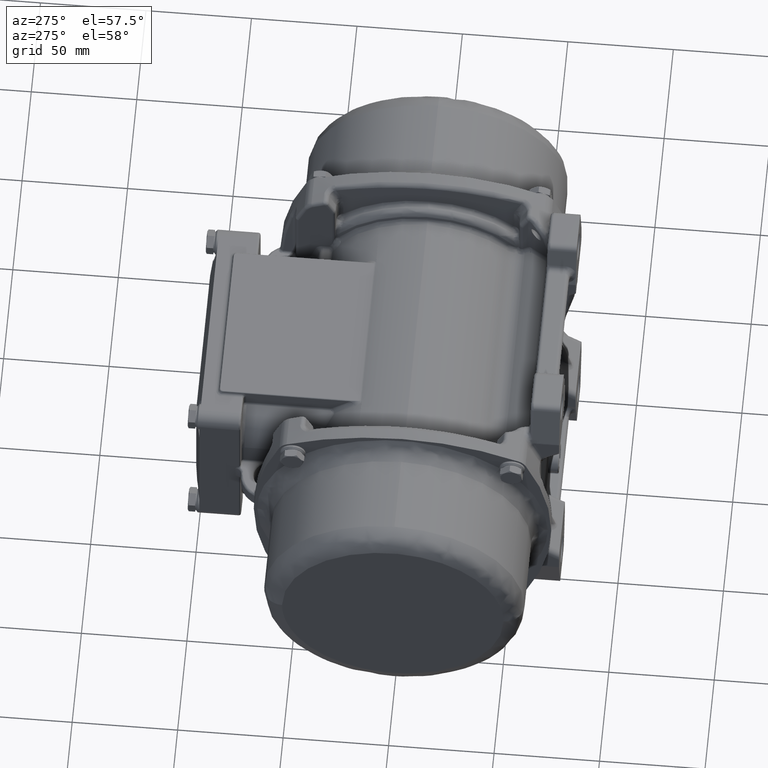
[diagram: clean part render]
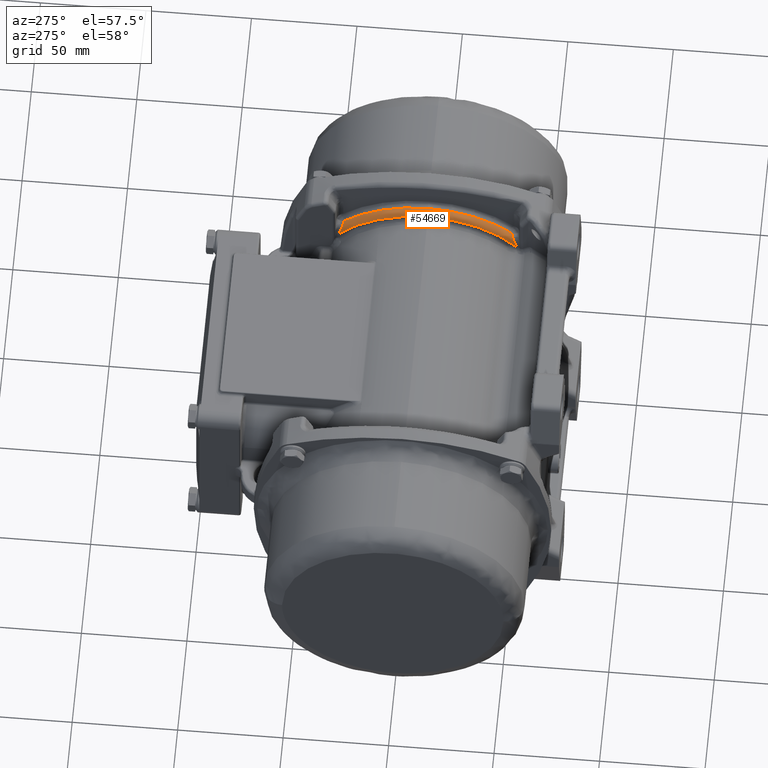
[diagram: same view with one face highlighted and labeled with its STEP entity id]
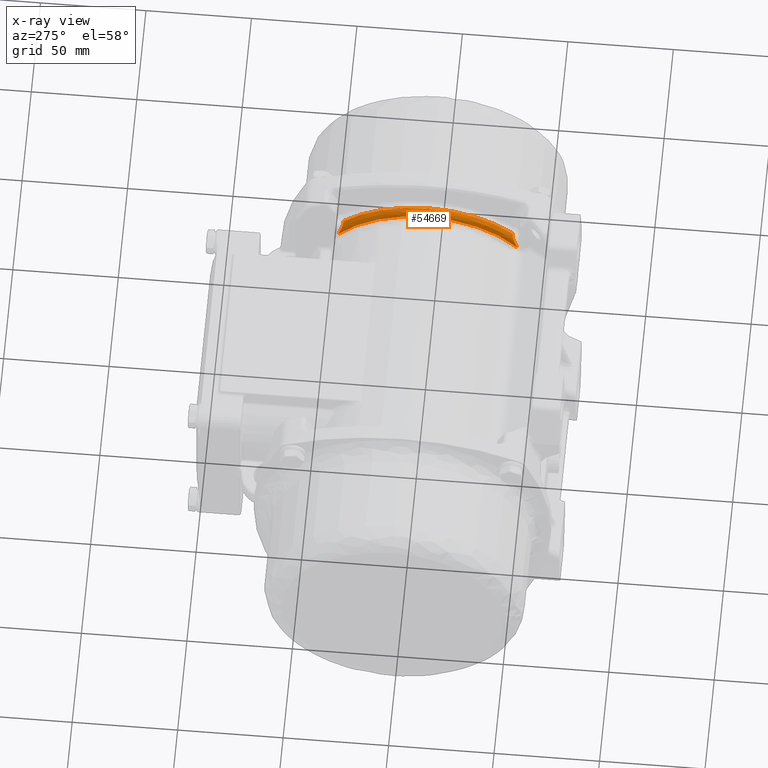
[diagram: x-ray of the same camera — body ghosted, the highlighted face saturated]
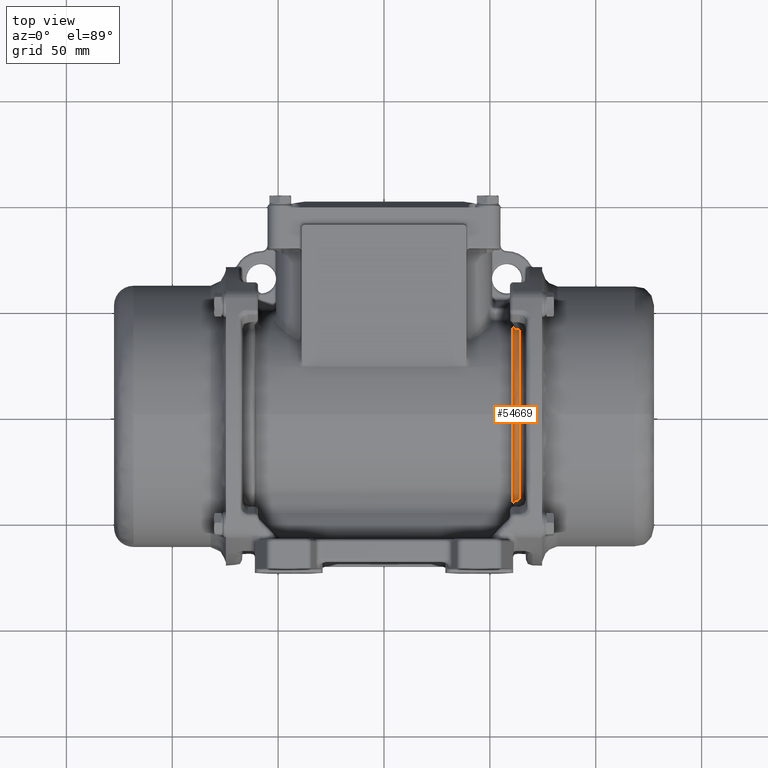
[diagram: same view with one face highlighted and labeled with its STEP entity id]
A machine part, auxiliary view. The second image highlights one B-rep face of the part: STEP entity #54669.
The next image is the same camera in x-ray: the body ghosted, the highlighted face saturated — about 0% of this face is hidden behind the body in this view.
A second angle (top view) of the same face is appended — the face is thin or edge-on in the first view.
In plain terms, the highlighted face is a freeform B-spline surface patch.
Its self-contained STEP definition (entity closure, byte-faithful):
#355 = EDGE_CURVE ( 'NONE', #28574, #30978, #73647, .T. ) ;
#1140 = EDGE_LOOP ( 'NONE', ( #20560, #20289, #9012, #28747, #17414, #45437, #77228, #61309, #8903, #24576 ) ) ;
#2207 = B_SPLINE_CURVE_WITH_KNOTS ( 'NONE', 3,
 ( #53619, #17434, #66212, #72634, #16899, #60587, #47665, #29479, #42269, #60321, #24165, #23601, #35578, #41458, #78266, #72373, #78530, #78811, #59777, #53887, #48210, #35314, #67015, #72917, #11010, #17165, #60053, #5096, #23883, #5628, #41728, #4566, #36377, #29217, #66743, #11542, #11272, #66483 ),
 .UNSPECIFIED., .F., .F.,
 ( 4, 2, 2, 1, 1, 2, 2, 2, 2, 1, 1, 1, 1, 2, 2, 2, 2, 1, 1, 1, 1, 2, 2, 4 ),
 ( 0.0000000000000000000, 0.1250000000000170700, 0.1875000000000250600, 0.2187500000000281200, 0.2343750000000307800, 0.2421875000000310300, 0.2500000000000312500, 0.3750000000000230900, 0.4375000000000178700, 0.4687500000000126000, 0.4843750000000103300, 0.4921875000000107700, 0.4960937500000134300, 0.4980468750000147700, 0.5000000000000161000, 0.6249999999999928900, 0.6874999999999807900, 0.7187499999999752400, 0.7343749999999696900, 0.7421874999999685800, 0.7460937499999670300, 0.7480468749999662500, 0.7499999999999654700, 1.000000000000000000 ),
 .UNSPECIFIED. ) ;
#3260 = CARTESIAN_POINT ( 'NONE',  ( 61.52353941271650900, 40.74284728102622900, 37.49018874130484100 ) ) ;
#3531 = CARTESIAN_POINT ( 'NONE',  ( 61.19163077614171400, 41.20950961008105700, 36.19481201679455000 ) ) ;
#3679 = AXIS2_PLACEMENT_3D ( 'NONE', #54031, #47013, #40819 ) ;
#4177 = CARTESIAN_POINT ( 'NONE',  ( 63.70316231109876500, -40.08325032770446200, 39.81264332191754100 ) ) ;
#4335 = CARTESIAN_POINT ( 'NONE',  ( 60.94875935405934800, 19.69630393084139200, 65.13286286953071200 ) ) ;
#4566 = CARTESIAN_POINT ( 'NONE',  ( 61.65949251430871700, -40.73160347191557700, 37.73715145899740300 ) ) ;
#5096 = CARTESIAN_POINT ( 'NONE',  ( 61.57590810249125500, -40.82573921759458100, 37.49499737320845600 ) ) ;
#5628 = CARTESIAN_POINT ( 'NONE',  ( 61.63536079292971000, -40.75772347557338500, 37.66978743220245500 ) ) ;
#5677 = EDGE_CURVE ( 'NONE', #55293, #31653, #73616, .T. ) ;
#8903 = ORIENTED_EDGE ( 'NONE', *, *, #355, .T. ) ;
#9012 = ORIENTED_EDGE ( 'NONE', *, *, #66529, .T. ) ;
#9172 = CARTESIAN_POINT ( 'NONE',  ( 61.45707068688818000, 40.81592600567859800, 37.28653297613625700 ) ) ;
#9443 = CARTESIAN_POINT ( 'NONE',  ( 61.16996777588612100, 41.24922823635649400, 36.08253730456858200 ) ) ;
#9704 = CARTESIAN_POINT ( 'NONE',  ( 61.03368501191054900, 41.53972253167872000, 35.24003027470157400 ) ) ;
#9854 =( BOUNDED_SURFACE ( )  B_SPLINE_SURFACE ( 3, 3, ( 
 ( #16664, #29246, #35071, #46644 ),
 ( #77524, #65706, #47172, #10512 ),
 ( #72143, #4335, #53387, #41217 ),
 ( #35349, #9996, #41492, #52851 ) ),
 .UNSPECIFIED., .F., .F., .F. ) 
 B_SPLINE_SURFACE_WITH_KNOTS ( ( 4, 4 ),
 ( 4, 4 ),
 ( 0.0000000000000000000, 1.000000000000000000 ),
 ( 0.0000000000000000000, 1.000000000000000000 ),
 .UNSPECIFIED. ) 
 GEOMETRIC_REPRESENTATION_ITEM ( )  RATIONAL_B_SPLINE_SURFACE ( (
 ( 1.000000000000000000, 0.7389429932581773600, 0.7389429932581773600, 1.000000000000000000),
 ( 0.8149093080398357400, 0.6021715233169063800, 0.6021715233169063800, 0.8149093080398357400),
 ( 0.8149093080398357400, 0.6021715233169063800, 0.6021715233169063800, 0.8149093080398357400),
 ( 1.000000000000000000, 0.7389429932581773600, 0.7389429932581773600, 1.000000000000000000) ) ) 
 REPRESENTATION_ITEM ( '' )  SURFACE ( )  );
#9971 = CARTESIAN_POINT ( 'NONE',  ( 61.14014713600162300, 41.30495974578433000, 35.92462343172887500 ) ) ;
#9996 = CARTESIAN_POINT ( 'NONE',  ( 60.87473056201889000, 19.09268909348155300, 63.13679484753949100 ) ) ;
#10226 = CARTESIAN_POINT ( 'NONE',  ( 61.64465293989521700, 40.62079186490270600, 37.83368792842789200 ) ) ;
#10512 = CARTESIAN_POINT ( 'NONE',  ( 62.17472181604783500, -44.89772151106690500, 34.29933823143936400 ) ) ;
#10772 = B_SPLINE_CURVE_WITH_KNOTS ( 'NONE', 3,
 ( #79329, #72899, #68297, #11805 ),
 .UNSPECIFIED., .F., .F.,
 ( 4, 4 ),
 ( 0.0000000000000000000, 1.000000000000000000 ),
 .UNSPECIFIED. ) ;
#10780 = CARTESIAN_POINT ( 'NONE',  ( 60.87473056201888300, -42.17652815768038000, 33.12717041594783800 ) ) ;
#11010 = CARTESIAN_POINT ( 'NONE',  ( 61.37979754212295800, -41.08536406073884700, 36.82767761796579700 ) ) ;
#11248 = CARTESIAN_POINT ( 'NONE',  ( 63.87187522676446600, 0.0000000000000000000, 56.49999999999998600 ) ) ;
#11272 = CARTESIAN_POINT ( 'NONE',  ( 62.17379794722636200, -40.30352085039090300, 38.87005477274966800 ) ) ;
#11542 = CARTESIAN_POINT ( 'NONE',  ( 61.90484246217946700, -40.47196681741169800, 38.40810792286134000 ) ) ;
#11594 = CARTESIAN_POINT ( 'NONE',  ( 63.87187522676448000, -40.04271755791467800, 39.86014012239633800 ) ) ;
#11805 = CARTESIAN_POINT ( 'NONE',  ( 60.88133588428516400, -42.34581265478284700, 33.08491600377151100 ) ) ;
#12281 = CARTESIAN_POINT ( 'NONE',  ( 63.87187522676448000, 40.04271755791465600, 39.86014012239635200 ) ) ;
#12317 = VERTEX_POINT ( 'NONE', #23659 ) ;
#12790 = B_SPLINE_CURVE_WITH_KNOTS ( 'NONE', 3,
 ( #27631, #77760, #39895, #28699, #58502, #45802, #46622, #70532, #65139, #10226, #21726, #58762, #76973, #40692, #3260, #33716, #53099, #9172, #40420, #16372, #52014, #15329, #58224, #3531, #64353, #76702, #77500, #9443, #46350, #9971, #64624, #27896, #9704, #52567, #21989, #64875, #16115, #28173, #59042, #71336, #22259 ),
 .UNSPECIFIED., .F., .F.,
 ( 4, 2, 2, 2, 1, 1, 1, 1, 1, 1, 2, 2, 2, 2, 1, 1, 1, 1, 2, 2, 2, 2, 1, 2, 2, 4 ),
 ( 0.0000000000000000000, 0.1249999999999316400, 0.1406249999999236400, 0.1484374999999197900, 0.1562499999999159300, 0.1874999999998999100, 0.2187499999998839300, 0.2343749999998778800, 0.2421874999998748500, 0.2460937499998743200, 0.2480468749998735700, 0.2499999999998728800, 0.3749999999998606100, 0.4374999999998561200, 0.4687499999998520600, 0.4843749999998505600, 0.4921874999998504000, 0.4960937499998500100, 0.4980468749998509500, 0.4999999999998519000, 0.6249999999998908700, 0.6874999999999104100, 0.7187499999999188400, 0.7343749999999233900, 0.7499999999999279500, 1.000000000000000000 ),
 .UNSPECIFIED. ) ;
#13675 = B_SPLINE_CURVE_WITH_KNOTS ( 'NONE', 3,
 ( #12281, #49426, #44000, #74402 ),
 .UNSPECIFIED., .F., .F.,
 ( 4, 4 ),
 ( 0.0000000000000000000, 1.000000000000000000 ),
 .UNSPECIFIED. ) ;
#15329 = CARTESIAN_POINT ( 'NONE',  ( 61.23624165805626500, 41.13230212274118700, 36.41156975177690900 ) ) ;
#16115 = CARTESIAN_POINT ( 'NONE',  ( 60.97143083549895000, 41.70896166749745500, 34.71641061096378400 ) ) ;
#16235 = EDGE_CURVE ( 'NONE', #78813, #75481, #10772, .T. ) ;
#16372 = CARTESIAN_POINT ( 'NONE',  ( 61.30753224716571000, 41.01921368100216400, 36.72620902249491300 ) ) ;
#16664 = CARTESIAN_POINT ( 'NONE',  ( 63.87187522676446600, 44.78114578667150200, 34.45140029132155500 ) ) ;
#16899 = CARTESIAN_POINT ( 'NONE',  ( 60.93375711984374700, -42.08040578118701800, 34.01612332431009400 ) ) ;
#17165 = CARTESIAN_POINT ( 'NONE',  ( 61.48558534412623500, -40.93859776774705500, 37.20553620750249700 ) ) ;
#17414 = ORIENTED_EDGE ( 'NONE', *, *, #61385, .T. ) ;
#17434 = CARTESIAN_POINT ( 'NONE',  ( 60.88678643055886400, -42.30229605836482400, 33.25182450077451100 ) ) ;
#18004 = EDGE_CURVE ( 'NONE', #48283, #78813, #74769, .T. ) ;
#18411 = CIRCLE ( 'NONE', #57171, 56.49999999999997900 ) ;
#20289 = ORIENTED_EDGE ( 'NONE', *, *, #5677, .T. ) ;
#20560 = ORIENTED_EDGE ( 'NONE', *, *, #68004, .T. ) ;
#21489 = DIRECTION ( 'NONE',  ( 0.0000000000000000000, 0.0000000000000000000, -1.000000000000000000 ) ) ;
#21726 = CARTESIAN_POINT ( 'NONE',  ( 61.59144677195311600, 40.67170744344427600, 37.68942480103339700 ) ) ;
#21989 = CARTESIAN_POINT ( 'NONE',  ( 60.99307783168086400, 41.64601987654870600, 34.91441743128388700 ) ) ;
#22259 = CARTESIAN_POINT ( 'NONE',  ( 60.87473056201888300, 42.14911573972158000, 33.16204139618684400 ) ) ;
#22406 = CARTESIAN_POINT ( 'NONE',  ( 63.70316231109876500, -40.08325032770446200, 39.81264332191754100 ) ) ;
#23601 = CARTESIAN_POINT ( 'NONE',  ( 61.03994534512683900, -41.74974671399087400, 35.03255356884596900 ) ) ;
#23659 = CARTESIAN_POINT ( 'NONE',  ( 63.70316231109853100, 40.08325032770445500, 39.81264332191751300 ) ) ;
#23883 = CARTESIAN_POINT ( 'NONE',  ( 61.60326584909271500, -40.79356251317764800, 37.57757207846093200 ) ) ;
#24165 = CARTESIAN_POINT ( 'NONE',  ( 60.99758565373299700, -41.87271794681390700, 34.66436383272234400 ) ) ;
#24576 = ORIENTED_EDGE ( 'NONE', *, *, #53413, .T. ) ;
#25039 = CARTESIAN_POINT ( 'NONE',  ( 63.15293163127612500, 40.09667908121406300, 39.75514375418378400 ) ) ;
#25463 = VERTEX_POINT ( 'NONE', #75601 ) ;
#26579 = CARTESIAN_POINT ( 'NONE',  ( 62.44875009070579400, -40.23808705806941800, 39.14977265446006500 ) ) ;
#26581 = CARTESIAN_POINT ( 'NONE',  ( 62.14875009070578900, 40.32028711585692100, 38.79849746928181300 ) ) ;
#27631 = CARTESIAN_POINT ( 'NONE',  ( 62.14875009070578900, 40.32028711585692100, 38.79849746928181300 ) ) ;
#27756 = CARTESIAN_POINT ( 'NONE',  ( 63.81672781165108400, -40.06830850125971500, 39.83443196097844900 ) ) ;
#27896 = CARTESIAN_POINT ( 'NONE',  ( 61.05207951014757100, 41.49574367047566900, 35.37128192739693600 ) ) ;
#28034 = CARTESIAN_POINT ( 'NONE',  ( 63.76045872433692800, -40.08185170212371400, 39.81863111469175500 ) ) ;
#28173 = CARTESIAN_POINT ( 'NONE',  ( 60.96705427760325300, 41.72223445581612100, 34.67425068517396600 ) ) ;
#28574 = VERTEX_POINT ( 'NONE', #67665 ) ;
#28699 = CARTESIAN_POINT ( 'NONE',  ( 61.77259007626459200, 40.51614774432987100, 38.13936423718885000 ) ) ;
#28747 = ORIENTED_EDGE ( 'NONE', *, *, #42366, .T. ) ;
#28804 = CARTESIAN_POINT ( 'NONE',  ( 63.87187522676446600, 0.0000000000000000000, 0.0000000000000000000 ) ) ;
#29217 = CARTESIAN_POINT ( 'NONE',  ( 61.66524468022876700, -40.72548096409306600, 37.75296467792964700 ) ) ;
#29246 = CARTESIAN_POINT ( 'NONE',  ( 63.87187522676447300, 20.11410912951068000, 66.51448496505966500 ) ) ;
#29354 = CARTESIAN_POINT ( 'NONE',  ( 63.87187522676448000, 40.04271755791465600, 39.86014012239635200 ) ) ;
#29479 = CARTESIAN_POINT ( 'NONE',  ( 60.98253631775871500, -41.91752243470037300, 34.52887285634764000 ) ) ;
#30978 = VERTEX_POINT ( 'NONE', #22406 ) ;
#31653 = VERTEX_POINT ( 'NONE', #29354 ) ;
#32936 = CARTESIAN_POINT ( 'NONE',  ( 63.26805050648519600, -40.09387010531675300, 39.76717319085470600 ) ) ;
#33456 = CARTESIAN_POINT ( 'NONE',  ( 63.70316231109876500, -40.08325032770446200, 39.81264332191754100 ) ) ;
#33716 = CARTESIAN_POINT ( 'NONE',  ( 61.52095375467746400, 40.74567490201332000, 37.48230483144405400 ) ) ;
#34358 = DIRECTION ( 'NONE',  ( -1.000000000000000000, -0.0000000000000000000, -0.0000000000000000000 ) ) ;
#35071 = CARTESIAN_POINT ( 'NONE',  ( 63.87187522676447300, -20.33956055630307000, 66.44589056230259400 ) ) ;
#35236 = EDGE_CURVE ( 'NONE', #75481, #28574, #2207, .T. ) ;
#35314 = CARTESIAN_POINT ( 'NONE',  ( 61.24740763187102700, -41.30887060953421000, 36.24149298756135800 ) ) ;
#35349 = CARTESIAN_POINT ( 'NONE',  ( 60.87473056201889000, 42.50710226586056700, 32.70191438069839100 ) ) ;
#35578 = CARTESIAN_POINT ( 'NONE',  ( 61.08423653368149100, -41.64301122761092000, 35.33535741777610900 ) ) ;
#36377 = CARTESIAN_POINT ( 'NONE',  ( 61.66294361870466600, -40.72792682150348800, 37.74664670899885300 ) ) ;
#39895 = CARTESIAN_POINT ( 'NONE',  ( 61.90345371090695900, 40.42162833004558600, 38.42406205455678500 ) ) ;
#40420 = CARTESIAN_POINT ( 'NONE',  ( 61.39602520759283500, 40.89255471540466400, 37.07617494004785600 ) ) ;
#40692 = CARTESIAN_POINT ( 'NONE',  ( 61.52742060392577600, 40.73861482909800500, 37.50199268466951000 ) ) ;
#40819 = DIRECTION ( 'NONE',  ( 0.0000000000000000000, 0.0000000000000000000, -1.000000000000000000 ) ) ;
#41217 = CARTESIAN_POINT ( 'NONE',  ( 60.94875935405934100, -43.96511737061267400, 33.58688103377075200 ) ) ;
#41458 = CARTESIAN_POINT ( 'NONE',  ( 61.14876830752918800, -41.50167157350175300, 35.72509504189261500 ) ) ;
#41492 = CARTESIAN_POINT ( 'NONE',  ( 60.87473056201889000, -19.30669181016728300, 63.07168375576997500 ) ) ;
#41728 = CARTESIAN_POINT ( 'NONE',  ( 61.65144349242817900, -40.74023724643247800, 37.71486774972103700 ) ) ;
#41897 = B_SPLINE_CURVE_WITH_KNOTS ( 'NONE', 3,
 ( #55587, #25039, #45798, #26581 ),
 .UNSPECIFIED., .F., .F.,
 ( 4, 4 ),
 ( 0.0000000000000000000, 1.000000000000000000 ),
 .UNSPECIFIED. ) ;
#42269 = CARTESIAN_POINT ( 'NONE',  ( 60.98987536275345200, -41.89550284358308100, 34.59565962062821900 ) ) ;
#42366 = EDGE_CURVE ( 'NONE', #12317, #25463, #41897, .T. ) ;
#44000 = CARTESIAN_POINT ( 'NONE',  ( 63.76045875586536500, 40.08185168874714300, 39.81863113067928600 ) ) ;
#45437 = ORIENTED_EDGE ( 'NONE', *, *, #18004, .T. ) ;
#45798 = CARTESIAN_POINT ( 'NONE',  ( 62.60719736211211000, 40.17675512187137300, 39.41158373531110500 ) ) ;
#45802 = CARTESIAN_POINT ( 'NONE',  ( 61.73657873849739300, 40.54373274200180100, 38.05752420228378700 ) ) ;
#46169 = B_SPLINE_CURVE_WITH_KNOTS ( 'NONE', 3,
 ( #4177, #28034, #27756, #70660 ),
 .UNSPECIFIED., .F., .F.,
 ( 4, 4 ),
 ( 0.0000000000000000000, 1.000000000000000000 ),
 .UNSPECIFIED. ) ;
#46350 = CARTESIAN_POINT ( 'NONE',  ( 61.16875776968399900, 41.25148627001498600, 36.07614040798163300 ) ) ;
#46622 = CARTESIAN_POINT ( 'NONE',  ( 61.73137177921672200, 40.54785887839688700, 38.04538209226228000 ) ) ;
#46644 = CARTESIAN_POINT ( 'NONE',  ( 63.87187522676446600, -44.89772151106689800, 34.29933823143936400 ) ) ;
#47013 = DIRECTION ( 'NONE',  ( 1.000000000000000000, 0.0000000000000000000, 0.0000000000000000000 ) ) ;
#47172 = CARTESIAN_POINT ( 'NONE',  ( 62.17472181604782800, -20.33956055630306300, 66.44589056230260800 ) ) ;
#47665 = CARTESIAN_POINT ( 'NONE',  ( 60.96661827294437300, -41.96696143508217600, 34.37699304257189700 ) ) ;
#48210 = CARTESIAN_POINT ( 'NONE',  ( 61.24626169256406200, -41.31095071060008900, 36.23598089178078400 ) ) ;
#48283 = VERTEX_POINT ( 'NONE', #50587 ) ;
#49426 = CARTESIAN_POINT ( 'NONE',  ( 63.81672784322965700, 40.06830848660567300, 39.83443197569961600 ) ) ;
#50587 = CARTESIAN_POINT ( 'NONE',  ( 60.87473056201888300, 42.14911573972158000, 33.16204139618684400 ) ) ;
#51171 = CARTESIAN_POINT ( 'NONE',  ( 62.83624339498096100, -40.14591155994859400, 39.54394010841116400 ) ) ;
#51785 = CARTESIAN_POINT ( 'NONE',  ( 63.87187522676446600, 0.0000000000000000000, 0.0000000000000000000 ) ) ;
#52014 = CARTESIAN_POINT ( 'NONE',  ( 61.27855230070024800, 41.06338489200238900, 36.60381802397542800 ) ) ;
#52567 = CARTESIAN_POINT ( 'NONE',  ( 61.00653743425511500, 41.60988830789464300, 35.02584003227909900 ) ) ;
#52851 = CARTESIAN_POINT ( 'NONE',  ( 60.87473056201889000, -42.61775812674893900, 32.55757422555896600 ) ) ;
#53099 = CARTESIAN_POINT ( 'NONE',  ( 61.51932862422579300, 40.74745814385340700, 37.47733440523322200 ) ) ;
#53387 = CARTESIAN_POINT ( 'NONE',  ( 60.94875935405934800, -19.91707233749329500, 65.06569329239664500 ) ) ;
#53413 = EDGE_CURVE ( 'NONE', #30978, #67598, #46169, .T. ) ;
#53619 = CARTESIAN_POINT ( 'NONE',  ( 60.88133588428516400, -42.34581265478284700, 33.08491600377151100 ) ) ;
#53887 = CARTESIAN_POINT ( 'NONE',  ( 61.24453907411535200, -41.31408221023500000, 36.22768211814212000 ) ) ;
#54031 = CARTESIAN_POINT ( 'NONE',  ( 60.87473056201889000, 0.0000000000000000000, 0.0000000000000000000 ) ) ;
#54112 = FACE_OUTER_BOUND ( 'NONE', #1140, .T. ) ;
#54669 = ADVANCED_FACE ( 'NONE', ( #54112 ), #9854, .T. ) ;
#55293 = VERTEX_POINT ( 'NONE', #11248 ) ;
#55504 = CARTESIAN_POINT ( 'NONE',  ( 60.88133588428516400, -42.34581265478284700, 33.08491600377151100 ) ) ;
#55587 = CARTESIAN_POINT ( 'NONE',  ( 63.70316231109853100, 40.08325032770445500, 39.81264332191751300 ) ) ;
#57171 = AXIS2_PLACEMENT_3D ( 'NONE', #28804, #34358, #70643 ) ;
#58224 = CARTESIAN_POINT ( 'NONE',  ( 61.21537663185949200, 41.16742585268425400, 36.31328051423528100 ) ) ;
#58502 = CARTESIAN_POINT ( 'NONE',  ( 61.75813214412540500, 40.52698421713964900, 38.10704217531136400 ) ) ;
#58762 = CARTESIAN_POINT ( 'NONE',  ( 61.55471861472748400, 40.70942986025722400, 37.58354662578559400 ) ) ;
#59042 = CARTESIAN_POINT ( 'NONE',  ( 60.89865929323545400, 41.93548290236476800, 33.99279256046914100 ) ) ;
#59777 = CARTESIAN_POINT ( 'NONE',  ( 61.24049392328507200, -41.32146826541062300, 36.20810381253564000 ) ) ;
#60053 = CARTESIAN_POINT ( 'NONE',  ( 61.52148296232906700, -40.89196017808534800, 37.32511086885259000 ) ) ;
#60321 = CARTESIAN_POINT ( 'NONE',  ( 60.99488657990716000, -41.88063526491727400, 34.64055958248341900 ) ) ;
#60587 = CARTESIAN_POINT ( 'NONE',  ( 60.95491287020213600, -42.00612000901216400, 34.25363661181408800 ) ) ;
#61309 = ORIENTED_EDGE ( 'NONE', *, *, #35236, .T. ) ;
#61385 = EDGE_CURVE ( 'NONE', #25463, #48283, #12790, .T. ) ;
#64125 = DIRECTION ( 'NONE',  ( -1.000000000000000000, -0.0000000000000000000, -0.0000000000000000000 ) ) ;
#64353 = CARTESIAN_POINT ( 'NONE',  ( 61.17991845864389700, 41.23082084619386500, 36.13462756244990000 ) ) ;
#64624 = CARTESIAN_POINT ( 'NONE',  ( 61.10600296414678900, 41.37348981282952600, 35.73072992528007300 ) ) ;
#64875 = CARTESIAN_POINT ( 'NONE',  ( 60.98001958546181800, 41.68360010451855400, 34.79648256104696500 ) ) ;
#65139 = CARTESIAN_POINT ( 'NONE',  ( 61.69326609866376300, 40.57866261811555800, 37.95516969115970300 ) ) ;
#65706 = CARTESIAN_POINT ( 'NONE',  ( 62.17472181604782800, 20.11410912951068400, 66.51448496505965100 ) ) ;
#66212 = CARTESIAN_POINT ( 'NONE',  ( 60.89593560677582900, -42.24264745159760500, 33.46920091850798000 ) ) ;
#66483 = CARTESIAN_POINT ( 'NONE',  ( 62.44875009070579400, -40.23808705806941800, 39.14977265446006500 ) ) ;
#66529 = EDGE_CURVE ( 'NONE', #31653, #12317, #13675, .T. ) ;
#66743 = CARTESIAN_POINT ( 'NONE',  ( 61.66569234612674700, -40.72500450949690500, 37.75419526223363700 ) ) ;
#67015 = CARTESIAN_POINT ( 'NONE',  ( 61.24756168479986200, -41.30859026839204500, 36.24223593206374300 ) ) ;
#67427 = AXIS2_PLACEMENT_3D ( 'NONE', #51785, #64125, #21489 ) ;
#67598 = VERTEX_POINT ( 'NONE', #11594 ) ;
#67665 = CARTESIAN_POINT ( 'NONE',  ( 62.44875009070579400, -40.23808705806941800, 39.14977265446006500 ) ) ;
#68004 = EDGE_CURVE ( 'NONE', #67598, #55293, #18411, .T. ) ;
#68297 = CARTESIAN_POINT ( 'NONE',  ( 60.87844313313377900, -42.28985956358630500, 33.09750840654845700 ) ) ;
#70532 = CARTESIAN_POINT ( 'NONE',  ( 61.72047370640347500, 40.55658356807044400, 38.01977191670254500 ) ) ;
#70643 = DIRECTION ( 'NONE',  ( 0.0000000000000000000, 0.0000000000000000000, -1.000000000000000000 ) ) ;
#70660 = CARTESIAN_POINT ( 'NONE',  ( 63.87187522676448000, -40.04271755791467800, 39.86014012239633800 ) ) ;
#71336 = CARTESIAN_POINT ( 'NONE',  ( 60.88100706684760900, 42.06613028217383700, 33.50000308707581800 ) ) ;
#72143 = CARTESIAN_POINT ( 'NONE',  ( 60.94875935405934100, 43.85096312774435700, 33.73578449892075100 ) ) ;
#72373 = CARTESIAN_POINT ( 'NONE',  ( 61.20056126581249600, -41.39699749062192100, 36.00715143131945700 ) ) ;
#72634 = CARTESIAN_POINT ( 'NONE',  ( 60.92265299906972600, -42.12456385307992700, 33.87005283933741100 ) ) ;
#72899 = CARTESIAN_POINT ( 'NONE',  ( 60.87626406354103600, -42.23342632736519400, 33.11159127655220400 ) ) ;
#72917 = CARTESIAN_POINT ( 'NONE',  ( 61.31179238503192900, -41.19234415495472500, 36.55024009763145900 ) ) ;
#73616 = CIRCLE ( 'NONE', #67427, 56.49999999999997900 ) ;
#73647 = B_SPLINE_CURVE_WITH_KNOTS ( 'NONE', 3,
 ( #26579, #51171, #32936, #33456 ),
 .UNSPECIFIED., .F., .F.,
 ( 4, 4 ),
 ( 0.0000000000000000000, 1.000000000000000000 ),
 .UNSPECIFIED. ) ;
#74402 = CARTESIAN_POINT ( 'NONE',  ( 63.70316231109853100, 40.08325032770445500, 39.81264332191751300 ) ) ;
#74769 = CIRCLE ( 'NONE', #3679, 53.63085816209596900 ) ;
#75481 = VERTEX_POINT ( 'NONE', #55504 ) ;
#75601 = CARTESIAN_POINT ( 'NONE',  ( 62.14875009070578900, 40.32028711585692100, 38.79849746928181300 ) ) ;
#76702 = CARTESIAN_POINT ( 'NONE',  ( 61.17410389213061000, 41.24154291238138400, 36.10429769729309200 ) ) ;
#76973 = CARTESIAN_POINT ( 'NONE',  ( 61.53649545668134400, 40.72880211131749200, 37.52938180139955200 ) ) ;
#77228 = ORIENTED_EDGE ( 'NONE', *, *, #16235, .T. ) ;
#77500 = CARTESIAN_POINT ( 'NONE',  ( 61.17162100294503100, 41.24615222727960900, 36.09124825293807200 ) ) ;
#77524 = CARTESIAN_POINT ( 'NONE',  ( 62.17472181604783500, 44.78114578667150200, 34.45140029132155500 ) ) ;
#77760 = CARTESIAN_POINT ( 'NONE',  ( 62.02501323336632300, 40.35903905735084200, 38.63301037139537200 ) ) ;
#78266 = CARTESIAN_POINT ( 'NONE',  ( 61.16998914986008600, -41.45768428429079900, 35.84427465051331300 ) ) ;
#78530 = CARTESIAN_POINT ( 'NONE',  ( 61.21553500643070600, -41.36797676499384800, 36.08461703656990200 ) ) ;
#78811 = CARTESIAN_POINT ( 'NONE',  ( 61.23230288488344500, -41.33655554327139500, 36.16808847219324000 ) ) ;
#78813 = VERTEX_POINT ( 'NONE', #10780 ) ;
#79329 = CARTESIAN_POINT ( 'NONE',  ( 60.87473056201888300, -42.17652815768038000, 33.12717041594783800 ) ) ;